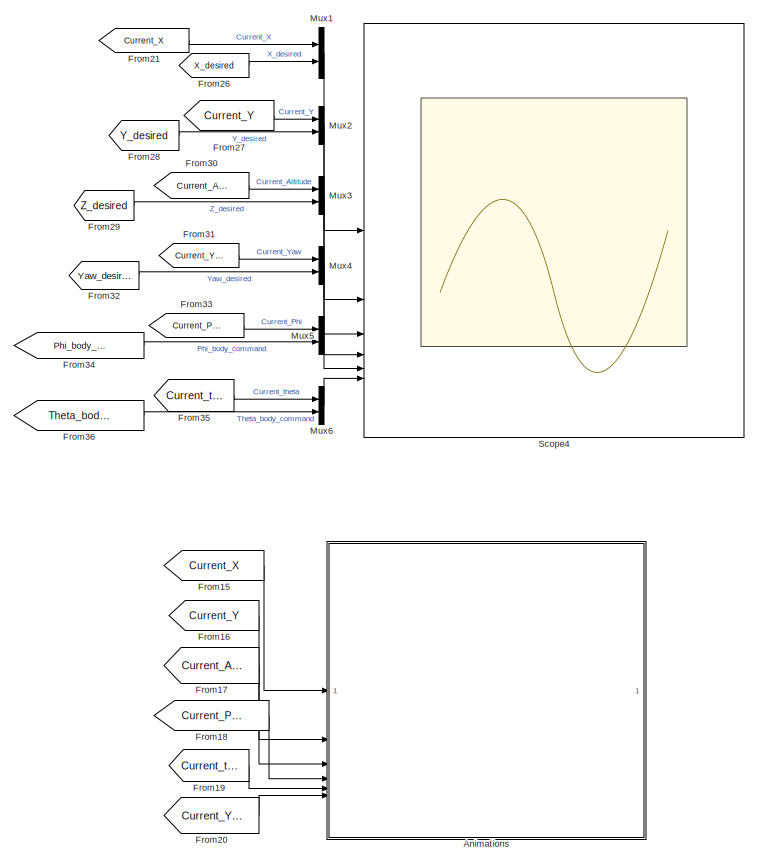
[diagram: root canvas - part 1/3, right side, full height]
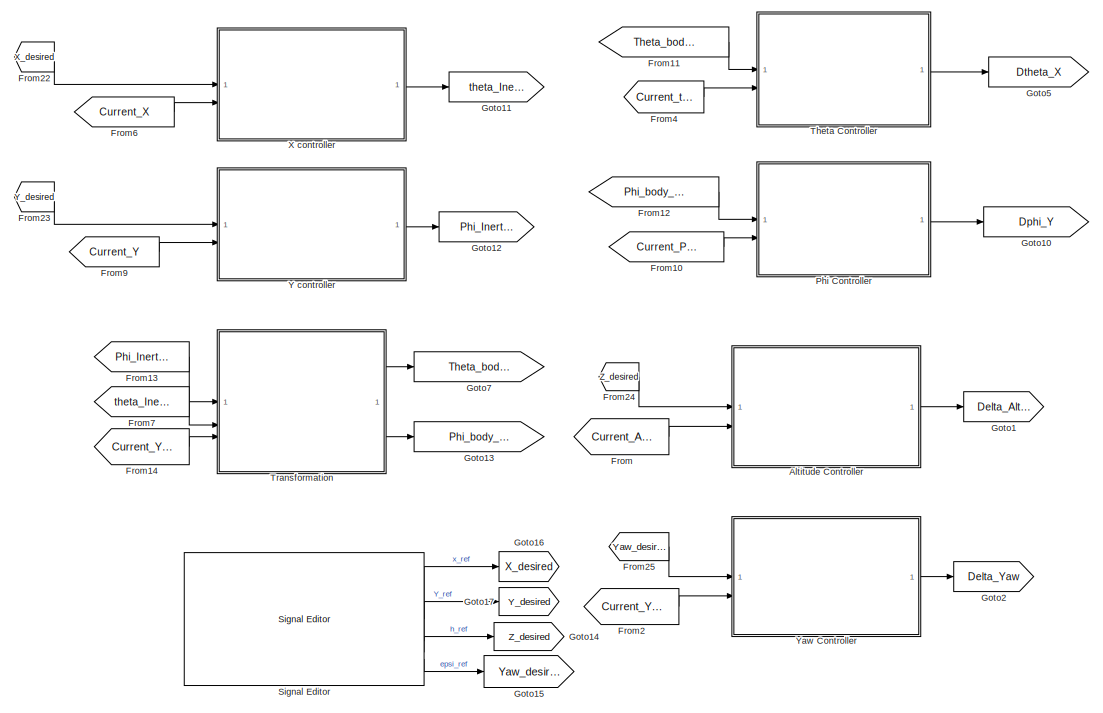
[diagram: root canvas - part 2/3, left side, full height]
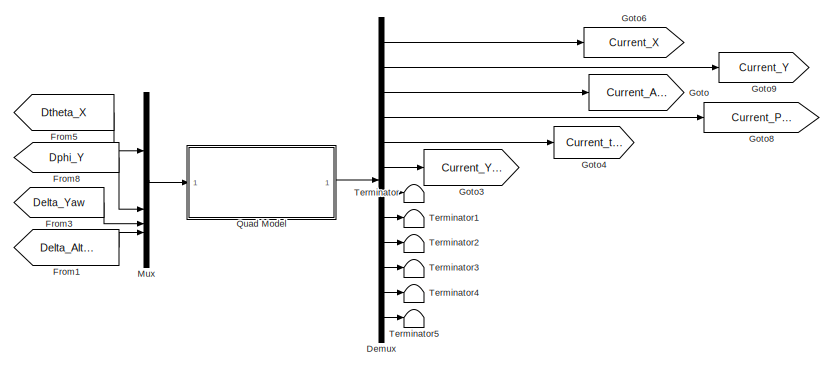
[diagram: root canvas - part 3/3, central region]
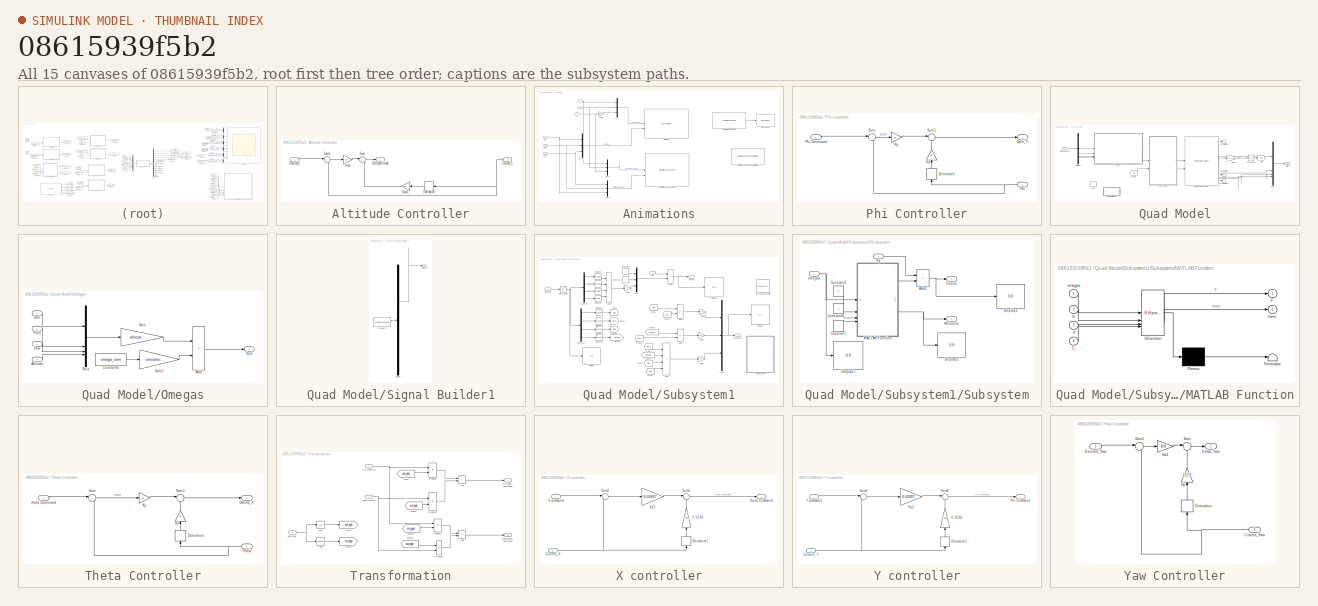
[diagram: thumbnail index - all 15 canvases of the model, root first then tree order]
MODEL slx_08615939f5b2
KIND model
CONFIG AbsTol = auto
CONFIG EnableMultiTasking = off
CONFIG FixedStep = auto
CONFIG MaxStep = auto
CONFIG MinStep = auto
CONFIG RelTol = 1e-3
CONFIG SampleTimeConstraint = Unconstrained
CONFIG SolverName = VariableStepAuto
CONFIG StartTime = 0.0
CONFIG StopTime = 50
BLOCK [SubSystem] Altitude Controller
BLOCK [Inport] Altitude Controller/Current_h
  Port = 2
BLOCK [Outport] Altitude Controller/Delta_Altitude
BLOCK [Derivative] Altitude Controller/Derivative
BLOCK [Inport] Altitude Controller/Desired_h
BLOCK [Gain] Altitude Controller/Gain1
  Gain = 89
BLOCK [Gain] Altitude Controller/Kd1
  Gain = 30
BLOCK [Sum] Altitude Controller/Sum
  Inputs = |++
BLOCK [Sum] Altitude Controller/Sum1
  Inputs = |-+
BLOCK [SubSystem] Animations
BLOCK [Gain] Animations/Gain1
  Gain = -1
BLOCK [Mux] Animations/Mux1
  DisplayOption = bar
  Inputs = 3
BLOCK [Mux] Animations/Mux2
  DisplayOption = bar
  Inputs = 3
BLOCK [Mux] Animations/Mux3
  DisplayOption = bar
  Inputs = 3
BLOCK [Mux] Animations/Mux9
  DisplayOption = bar
  Inputs = 3
BLOCK [Reference] Animations/Simulation  REF=aerolibanim/6DoF Animation
  SourceBlock = aerolibanim/6DoF Animation
  SourceType = 6DoF_Animation
BLOCK [Reference] Animations/Simulation 3D Camera  REF=sim3dcameralib/Simulation 3D Camera
  LibrarySourceBlock = uavsim3dlib/Simulation 3D Camera
  Priority = 1
  SourceBlock = sim3dcameralib/Simulation 3D Camera
  SourceType = Simulation 3D Camera
BLOCK [Reference] Animations/Simulation 3D Scene Configuration  REF=sim3dlib/Simulation 3D Scene Configuration
  LibrarySourceBlock = uavsim3dlib/Simulation 3D Scene Configuration
  Priority = 0
  SourceBlock = sim3dlib/Simulation 3D Scene Configuration
  SourceType = Simulation 3D Scene Configuration
BLOCK [Reference] Animations/Simulation 3D UAV Vehicle  REF=uavsim3dlib/Simulation 3D UAV Vehicle
  Priority = -1
  SourceBlock = uavsim3dlib/Simulation 3D UAV Vehicle
  SourceType = Simulation 3D UAV Vehicle
BLOCK [VideoViewer] Animations/Video Viewer
  FigPos = [803 436 418 304]
  ScopeSpecificationString = vipscopes.VideoViewerScopeCfg('CurrentConfiguration', extmgr.ConfigurationSet(extmgr.Configuration('Core','General UI',true),extmgr.Configuration('Core','Source UI',true),extmgr.Configuration('Sources','WiredSimulink',true),extmgr.Configuration('Visuals','Video',true),extmgr.Configuration('Tools','Image Navigation Tools',true),extmgr.Configuration('Tools','Image Tool',true),extmgr.Configuration('T...<+75ch>
BLOCK [Inport] Animations/X
BLOCK [Inport] Animations/Y
  Port = 2
BLOCK [Inport] Animations/Z+
  Port = 3
BLOCK [Inport] Animations/epsi
  Port = 6
BLOCK [Inport] Animations/phi
  Port = 4
BLOCK [Inport] Animations/theta
  Port = 5
BLOCK [Demux] Demux
  Outputs = 12
BLOCK [From] From
  GotoTag = Current_Altitude
BLOCK [From] From1
  GotoTag = Delta_Altitude
BLOCK [From] From10
  GotoTag = Current_Phi
BLOCK [From] From11
  GotoTag = Theta_body_command
BLOCK [From] From12
  GotoTag = Phi_body_command
BLOCK [From] From13
  GotoTag = Phi_Inertial
BLOCK [From] From14
  GotoTag = Current_Yaw
BLOCK [From] From15
  GotoTag = Current_X
BLOCK [From] From16
  GotoTag = Current_Y
BLOCK [From] From17
  GotoTag = Current_Altitude
BLOCK [From] From18
  GotoTag = Current_Phi
BLOCK [From] From19
  GotoTag = Current_theta
BLOCK [From] From2
  GotoTag = Current_Yaw
BLOCK [From] From20
  GotoTag = Current_Yaw
BLOCK [From] From21
  GotoTag = Current_X
BLOCK [From] From22
  GotoTag = X_desired
BLOCK [From] From23
  GotoTag = Y_desired
BLOCK [From] From24
  GotoTag = Z_desired
BLOCK [From] From25
  GotoTag = Yaw_desired
BLOCK [From] From26
  GotoTag = X_desired
BLOCK [From] From27
  GotoTag = Current_Y
BLOCK [From] From28
  GotoTag = Y_desired
BLOCK [From] From29
  GotoTag = Z_desired
BLOCK [From] From3
  GotoTag = Delta_Yaw
BLOCK [From] From30
  GotoTag = Current_Altitude
BLOCK [From] From31
  GotoTag = Current_Yaw
BLOCK [From] From32
  GotoTag = Yaw_desired
BLOCK [From] From33
  GotoTag = Current_Phi
BLOCK [From] From34
  GotoTag = Phi_body_command
BLOCK [From] From35
  GotoTag = Current_theta
BLOCK [From] From36
  GotoTag = Theta_body_command
BLOCK [From] From4
  GotoTag = Current_theta
BLOCK [From] From5
  GotoTag = Dtheta_X
BLOCK [From] From6
  GotoTag = Current_X
BLOCK [From] From7
  GotoTag = theta_Inertial
BLOCK [From] From8
  GotoTag = Dphi_Y
BLOCK [From] From9
  GotoTag = Current_Y
BLOCK [Goto] Goto
  GotoTag = Current_Altitude
BLOCK [Goto] Goto1
  GotoTag = Delta_Altitude
BLOCK [Goto] Goto10
  GotoTag = Dphi_Y
BLOCK [Goto] Goto11
  GotoTag = theta_Inertial
BLOCK [Goto] Goto12
  GotoTag = Phi_Inertial
BLOCK [Goto] Goto13
  GotoTag = Phi_body_command
BLOCK [Goto] Goto14
  GotoTag = Z_desired
BLOCK [Goto] Goto15
  GotoTag = Yaw_desired
BLOCK [Goto] Goto16
  GotoTag = X_desired
BLOCK [Goto] Goto17
  GotoTag = Y_desired
BLOCK [Goto] Goto2
  GotoTag = Delta_Yaw
BLOCK [Goto] Goto3
  GotoTag = Current_Yaw
BLOCK [Goto] Goto4
  GotoTag = Current_theta
BLOCK [Goto] Goto5
  GotoTag = Dtheta_X
BLOCK [Goto] Goto6
  GotoTag = Current_X
BLOCK [Goto] Goto7
  GotoTag = Theta_body_command
BLOCK [Goto] Goto8
  GotoTag = Current_Phi
BLOCK [Goto] Goto9
  GotoTag = Current_Y
BLOCK [Mux] Mux
  DisplayOption = bar
BLOCK [Mux] Mux1
  DisplayOption = bar
  Inputs = 2
BLOCK [Mux] Mux2
  DisplayOption = bar
  Inputs = 2
BLOCK [Mux] Mux3
  DisplayOption = bar
  Inputs = 2
BLOCK [Mux] Mux4
  DisplayOption = bar
  Inputs = 2
BLOCK [Mux] Mux5
  DisplayOption = bar
  Inputs = 2
BLOCK [Mux] Mux6
  DisplayOption = bar
  Inputs = 2
BLOCK [SubSystem] Phi Controller
BLOCK [Derivative] Phi Controller/Derivative
  NameLocation = left
BLOCK [Outport] Phi Controller/Dphi_Y
BLOCK [Gain] Phi Controller/Kd
  Gain = 15
  NameLocation = right
BLOCK [Gain] Phi Controller/Kp
  Gain = 25
BLOCK [Inport] Phi Controller/Phi
  Port = 2
BLOCK [Inport] Phi Controller/Phi Command
BLOCK [Sum] Phi Controller/Sum
  Inputs = |+-
BLOCK [Sum] Phi Controller/Sum1
  Inputs = |+-
BLOCK [SubSystem] Quad Model
BLOCK [Reference] Quad Model/6DOF (Euler Angles)  REF=aerolibobsolete/6DOF (Euler Angles)
  SourceBlock = aerolibobsolete/6DOF (Euler Angles)
  SourceType = 6DOF EoM (Body Axis)
BLOCK [Inport] Quad Model/Control_Input
BLOCK [Demux] Quad Model/Demux
BLOCK [From] Quad Model/From
  GotoTag = Fg
BLOCK [Gain] Quad Model/Gain2
  Gain = [0; 0;m*g]
  Multiplication = Matrix(u*K)
  NameLocation = top
BLOCK [Goto] Quad Model/Goto
  GotoTag = Fg
BLOCK [Mux] Quad Model/Mux1
  DisplayOption = bar
BLOCK [SubSystem] Quad Model/Omegas
BLOCK [Sum] Quad Model/Omegas/Add
  IconShape = rectangular
BLOCK [Inport] Quad Model/Omegas/Altitude 
  Port = 4
BLOCK [Constant] Quad Model/Omegas/Constant4
  Value = omega_nom
BLOCK [Gain] Quad Model/Omegas/Gain
  Gain = allocation_matrix
  Multiplication = Matrix(K*u)
BLOCK [Gain] Quad Model/Omegas/Gain1
  Gain = ones(motors_no,1)
BLOCK [Mux] Quad Model/Omegas/Mux
  DisplayOption = bar
BLOCK [Outport] Quad Model/Omegas/Out1
BLOCK [Inport] Quad Model/Omegas/Pitch 
  Port = 2
BLOCK [Inport] Quad Model/Omegas/Roll 
BLOCK [Inport] Quad Model/Omegas/Yaw 
  Port = 3
BLOCK [SubSystem] Quad Model/Signal Builder1
  ClipboardFcn = sigbuilder_block('clipboard');
  CloseFcn = sigbuilder_block('close');
  Commented = on
  ContinueFcn = sigbuilder_block('continue');
  CopyFcn = sigbuilder_block('copy');
  DeleteFcn = sigbuilder_block('delete');
  LoadFcn = sigbuilder_block('load');
  MaskHideContents = on
  ModelCloseFcn = sigbuilder_block('modelClose');
  NameChangeFcn = sigbuilder_block('namechange');
  OpenFcn = sigbuilder_block('open',[394.2 60 550.8 400.2 ]);
  PauseFcn = sigbuilder_block('pause');
  PreSaveFcn = sigbuilder_block('preSave');
  StartFcn = sigbuilder_block('start');
  StopFcn = sigbuilder_block('stop');
  Tag = STV Subsys
BLOCK [Demux] Quad Model/Signal Builder1/Demux
  DisplayOption = none
  Outputs = 1
  Tag = STV Demux
BLOCK [FromWorkspace] Quad Model/Signal Builder1/FromWs
  Tag = STV FromWs
  VariableName = tuvar
BLOCK [Outport] Quad Model/Signal Builder1/Signal 1
  Tag = STV Outport
BLOCK [Outport] Quad Model/States
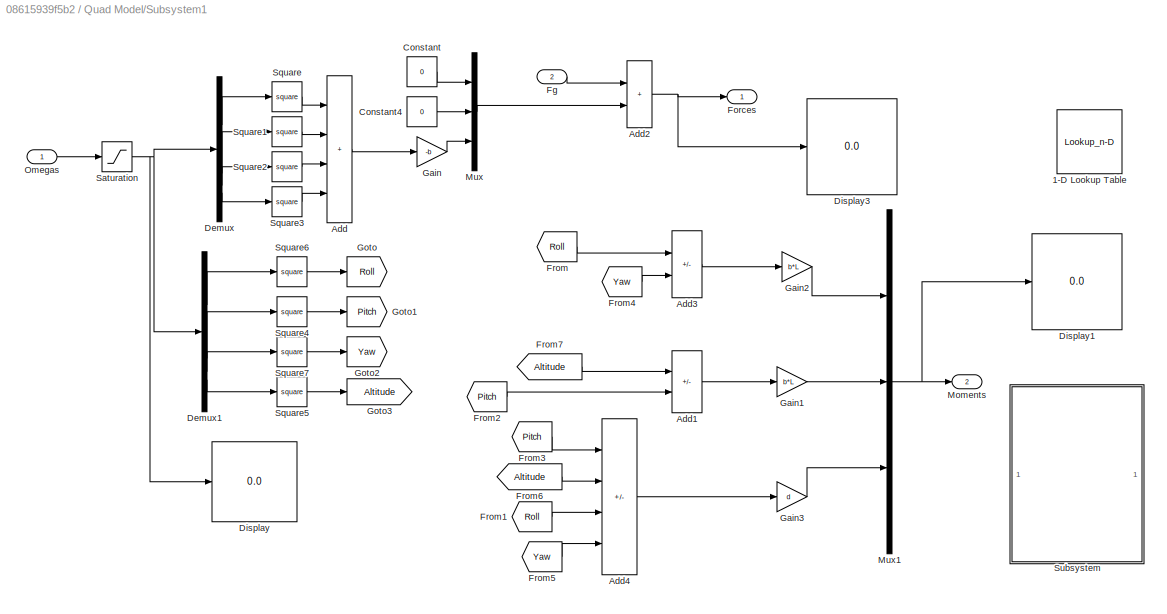
BLOCK [SubSystem] Quad Model/Subsystem1
BLOCK [Lookup_n-D] Quad Model/Subsystem1/1-D Lookup Table
  BreakpointsForDimension1 = [0 omega_nom sqrt(2)*omega_nom]
  Commented = on
  InputPortMap = u0
  InternalRulePriority = Speed
  NumberOfTableDimensions = 1
  RndMeth = Simplest
  Table = [-1 0 1]
BLOCK [Sum] Quad Model/Subsystem1/Add
  IconShape = rectangular
  Inputs = ++++
BLOCK [Sum] Quad Model/Subsystem1/Add1
  IconShape = rectangular
  Inputs = +-
BLOCK [Sum] Quad Model/Subsystem1/Add2
  IconShape = rectangular
BLOCK [Sum] Quad Model/Subsystem1/Add3
  IconShape = rectangular
  Inputs = +-
BLOCK [Sum] Quad Model/Subsystem1/Add4
  IconShape = rectangular
  Inputs = --++
BLOCK [Constant] Quad Model/Subsystem1/Constant
  Value = 0
BLOCK [Constant] Quad Model/Subsystem1/Constant4
  Value = 0
BLOCK [Demux] Quad Model/Subsystem1/Demux
BLOCK [Demux] Quad Model/Subsystem1/Demux1
BLOCK [Display] Quad Model/Subsystem1/Display
  Decimation = 1
BLOCK [Display] Quad Model/Subsystem1/Display1
  Decimation = 1
BLOCK [Display] Quad Model/Subsystem1/Display3
  Decimation = 1
BLOCK [Inport] Quad Model/Subsystem1/Fg
  Port = 2
BLOCK [Outport] Quad Model/Subsystem1/Forces
BLOCK [From] Quad Model/Subsystem1/From
  GotoTag = Roll
BLOCK [From] Quad Model/Subsystem1/From1
  GotoTag = Roll
BLOCK [From] Quad Model/Subsystem1/From2
  GotoTag = Pitch
BLOCK [From] Quad Model/Subsystem1/From3
  GotoTag = Pitch
BLOCK [From] Quad Model/Subsystem1/From4
  GotoTag = Yaw
BLOCK [From] Quad Model/Subsystem1/From5
  GotoTag = Yaw
BLOCK [From] Quad Model/Subsystem1/From6
  GotoTag = Altitude
BLOCK [From] Quad Model/Subsystem1/From7
  GotoTag = Altitude
BLOCK [Gain] Quad Model/Subsystem1/Gain
  Gain = -b
  Multiplication = Matrix(K*u)
BLOCK [Gain] Quad Model/Subsystem1/Gain1
  Gain = b*L
BLOCK [Gain] Quad Model/Subsystem1/Gain2
  Gain = b*L
BLOCK [Gain] Quad Model/Subsystem1/Gain3
  Gain = d
BLOCK [Goto] Quad Model/Subsystem1/Goto
  GotoTag = Roll
BLOCK [Goto] Quad Model/Subsystem1/Goto1
  GotoTag = Pitch
BLOCK [Goto] Quad Model/Subsystem1/Goto2
  GotoTag = Yaw
BLOCK [Goto] Quad Model/Subsystem1/Goto3
  GotoTag = Altitude
BLOCK [Outport] Quad Model/Subsystem1/Moments
  Port = 2
BLOCK [Mux] Quad Model/Subsystem1/Mux
  DisplayOption = bar
  Inputs = 3
BLOCK [Mux] Quad Model/Subsystem1/Mux1
  DisplayOption = bar
  Inputs = 3
BLOCK [Inport] Quad Model/Subsystem1/Omegas
BLOCK [Saturate] Quad Model/Subsystem1/Saturation
  UpperLimit = omega_max
BLOCK [Math] Quad Model/Subsystem1/Square
  Operator = square
BLOCK [Math] Quad Model/Subsystem1/Square1
  Operator = square
BLOCK [Math] Quad Model/Subsystem1/Square2
  Operator = square
BLOCK [Math] Quad Model/Subsystem1/Square3
  Operator = square
BLOCK [Math] Quad Model/Subsystem1/Square4
  Operator = square
BLOCK [Math] Quad Model/Subsystem1/Square5
  Operator = square
BLOCK [Math] Quad Model/Subsystem1/Square6
  Operator = square
BLOCK [Math] Quad Model/Subsystem1/Square7
  Operator = square
BLOCK [SubSystem] Quad Model/Subsystem1/Subsystem
  Commented = on
BLOCK [Sum] Quad Model/Subsystem1/Subsystem/Add1
  IconShape = rectangular
BLOCK [Constant] Quad Model/Subsystem1/Subsystem/Constant5
  Value = b
BLOCK [Constant] Quad Model/Subsystem1/Subsystem/Constant6
  Value = d
BLOCK [Constant] Quad Model/Subsystem1/Subsystem/Constant7
  Value = L
BLOCK [Display] Quad Model/Subsystem1/Subsystem/Display1
  Decimation = 1
BLOCK [Display] Quad Model/Subsystem1/Subsystem/Display2
  Decimation = 1
BLOCK [Display] Quad Model/Subsystem1/Subsystem/Display3
  Decimation = 1
BLOCK [Inport] Quad Model/Subsystem1/Subsystem/Fg
  Port = 2
BLOCK [Outport] Quad Model/Subsystem1/Subsystem/Forces
BLOCK [SubSystem] Quad Model/Subsystem1/Subsystem/MATLAB Function
  ErrorFcn = Stateflow.Translate.translate
  PermitHierarchicalResolution = ExplicitOnly
  SFBlockType = MATLAB Function
  TreatAsAtomicUnit = on
BLOCK [Demux] Quad Model/Subsystem1/Subsystem/MATLAB Function/ Demux 
  Outputs = 1
BLOCK [S-Function] Quad Model/Subsystem1/Subsystem/MATLAB Function/ SFunction 
  EnableBusSupport = off
  FunctionName = sf_sfun
  PortCounts = [4 3]
  SFcnIsStateOwnerBlock = off
  SFunctionDeploymentMode = off
  Tag = Stateflow S-Function 2
BLOCK [Terminator] Quad Model/Subsystem1/Subsystem/MATLAB Function/ Terminator 
BLOCK [Outport] Quad Model/Subsystem1/Subsystem/MATLAB Function/F
BLOCK [Inport] Quad Model/Subsystem1/Subsystem/MATLAB Function/L
  Port = 4
BLOCK [Inport] Quad Model/Subsystem1/Subsystem/MATLAB Function/b
  Port = 2
BLOCK [Inport] Quad Model/Subsystem1/Subsystem/MATLAB Function/d
  Port = 3
BLOCK [Outport] Quad Model/Subsystem1/Subsystem/MATLAB Function/mom
  Port = 2
BLOCK [Inport] Quad Model/Subsystem1/Subsystem/MATLAB Function/omegas
BLOCK [Outport] Quad Model/Subsystem1/Subsystem/Moments
  Port = 2
BLOCK [Inport] Quad Model/Subsystem1/Subsystem/omegas
BLOCK [Terminator] Quad Model/Terminator
BLOCK [Terminator] Quad Model/Terminator1
BLOCK [Terminator] Quad Model/Terminator2
BLOCK [Math] Quad Model/Transpose
  Operator = transpose
BLOCK [Constant] Quad Model/Yaw
  Commented = on
  NameLocation = left
  Value = 0
BLOCK [Scope] Scope4
  ActiveDisplayYMaximum = 5.625
  ActiveDisplayYMinimum = -0.62499999999999989
  DataLoggingVariableName = ScopeData4
  Floating = off
  GraphicalSettings = {"Style":{"BackgroundColor":[0.12941176470588237,0.12941176470588237,0.12941176470588237],"AxesColor":[0.07058823529411765,0.07058823529411765,0.07058823529411765],"LabelsColor":[0.8509803921568627,0.8509803921568627,0.8509803921568627],"PreserveColors":false,"Visible":[true,true,true,true,true,true,true,true,true,true,true,true],"LineStyle":["-","-","-","-","-","-","-","-","-","-","-","-"],"LineW...<+4903ch>
  LayoutDimensionsString = [2,3]
  MultipleDisplayCache = [{"MaxYLimMag":5.625,"MaxYLimReal":5.625,"MinYLimMag":0,"MinYLimReal":-0.62499999999999989,"PlotAsMagnitudePhase":false,"ShowGrid":true,"ShowLegend":true,"Title":"%<SignalLabel>","YLabel":""},{"MaxYLimMag":5.625,"MaxYLimReal":5.625,"MinYLimMag":0,"MinYLimReal":-0.62499999999999989,"PlotAsMagnitudePhase":false,"ShowGrid":true,"ShowLegend":true,"Title":"%<SignalLabel>","YLabel":""},{"MaxYLimMag":8.0...<+854ch>
  NumInputPorts = 6
  ScopeFrameLocation = window
  ShowLegend = on
  WasSavedAsWebScope = on
  WindowPosition = [0.000000,36.000000,1366.000000,697.000000,]
BLOCK [Reference] Signal Editor  REF=SignalEditorBlockLib/Signal Editor
  LibrarySourceBlock = simulink/Sources/Signal Editor
  SourceBlock = SignalEditorBlockLib/Signal Editor
  SourceType = SignalEditor
  UserDataPersistent = on
BLOCK [Terminator] Terminator
BLOCK [Terminator] Terminator1
BLOCK [Terminator] Terminator2
BLOCK [Terminator] Terminator3
BLOCK [Terminator] Terminator4
BLOCK [Terminator] Terminator5
BLOCK [SubSystem] Theta Controller
BLOCK [Derivative] Theta Controller/Derivative
  NameLocation = left
BLOCK [Outport] Theta Controller/Dtheta_X
BLOCK [Gain] Theta Controller/Kd
  Gain = 15
  NameLocation = right
BLOCK [Gain] Theta Controller/Kp
  Gain = 25
BLOCK [Sum] Theta Controller/Sum
  Inputs = |+-
BLOCK [Sum] Theta Controller/Sum1
  Inputs = |+-
BLOCK [Inport] Theta Controller/Theta
  Port = 2
BLOCK [Inport] Theta Controller/theta Command
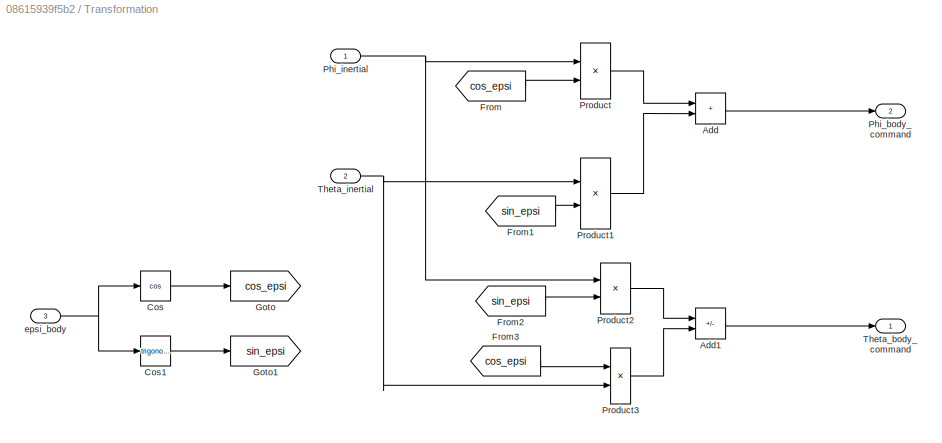
BLOCK [SubSystem] Transformation
BLOCK [Sum] Transformation/Add
  IconShape = rectangular
BLOCK [Sum] Transformation/Add1
  IconShape = rectangular
  Inputs = -+
BLOCK [Trigonometry] Transformation/Cos
  Operator = cos
BLOCK [Trigonometry] Transformation/Cos1
BLOCK [From] Transformation/From
  GotoTag = cos_epsi
BLOCK [From] Transformation/From1
  GotoTag = sin_epsi
BLOCK [From] Transformation/From2
  GotoTag = sin_epsi
BLOCK [From] Transformation/From3
  GotoTag = cos_epsi
BLOCK [Goto] Transformation/Goto
  GotoTag = cos_epsi
BLOCK [Goto] Transformation/Goto1
  GotoTag = sin_epsi
BLOCK [Outport] Transformation/Phi_body_command
  Port = 2
BLOCK [Inport] Transformation/Phi_inertial
BLOCK [Product] Transformation/Product
BLOCK [Product] Transformation/Product1
BLOCK [Product] Transformation/Product2
BLOCK [Product] Transformation/Product3
BLOCK [Outport] Transformation/Theta_body_command
BLOCK [Inport] Transformation/Theta_inertial
  Port = 2
BLOCK [Inport] Transformation/epsi_body
  Port = 3
BLOCK [SubSystem] X controller
BLOCK [Gain] X controller/0.1038
  Gain = 0.1038
  NameLocation = right
BLOCK [Inport] X controller/Current_X
  Port = 2
BLOCK [Derivative] X controller/Derivative1
  NameLocation = left
BLOCK [Gain] X controller/Kp2
  Gain = 0.02667
  NameLocation = top
BLOCK [Sum] X controller/Sum2
  Inputs = |++
BLOCK [Sum] X controller/Sum3
  Inputs = |-+
BLOCK [Inport] X controller/X command
BLOCK [Outport] X controller/theta Command
BLOCK [SubSystem] Y controller
BLOCK [Gain] Y controller/0.1038
  Gain = 0.1038
  NameLocation = right
BLOCK [Inport] Y controller/Current_Y
  Port = 2
BLOCK [Derivative] Y controller/Derivative1
  NameLocation = left
BLOCK [Gain] Y controller/Kp2
  Gain = 0.02667
  NameLocation = top
BLOCK [Outport] Y controller/Phi Command
BLOCK [Sum] Y controller/Sum2
  Inputs = |+-
BLOCK [Sum] Y controller/Sum3
  Inputs = |+-
BLOCK [Inport] Y controller/Y command
BLOCK [SubSystem] Yaw Controller
BLOCK [Inport] Yaw Controller/Current_Yaw
  Port = 2
BLOCK [Outport] Yaw Controller/Delta_Yaw
BLOCK [Derivative] Yaw Controller/Derivative
  NameLocation = left
BLOCK [Inport] Yaw Controller/Desired_Yaw
BLOCK [Gain] Yaw Controller/Kd1
  Gain = 304
BLOCK [Gain] Yaw Controller/Kp
  Gain = 322.8
  NameLocation = left
BLOCK [Sum] Yaw Controller/Sum
  Inputs = |+-
BLOCK [Sum] Yaw Controller/Sum1
  Inputs = |+-
NET Altitude Controller/Current_h:1 -> Altitude Controller/Derivative:1, Altitude Controller/Sum1:2
LINE Altitude Controller/Derivative:1 -> Altitude Controller/Gain1:1
LINE Altitude Controller/Desired_h:1 -> Altitude Controller/Sum1:1
LINE Altitude Controller/Gain1:1 -> Altitude Controller/Sum:2
LINE Altitude Controller/Kd1:1 -> Altitude Controller/Sum:1
LINE Altitude Controller/Sum1:1 -> Altitude Controller/Kd1:1
LINE Altitude Controller/Sum:1 -> Altitude Controller/Delta_Altitude:1
LINE Altitude Controller:1 -> Goto1:1
LINE Animations/Gain1:1 -> Animations/Mux1:3
LINE Animations/Mux1:1 -> Animations/Simulation:1
LINE Animations/Mux2:1 -> Animations/Simulation:2
LINE Animations/Mux3:1 -> Animations/Simulation 3D UAV Vehicle:2
LINE Animations/Mux9:1 -> Animations/Simulation 3D UAV Vehicle:1
LINE Animations/Simulation 3D Camera:1 -> Animations/Video Viewer:1
NET Animations/X:1 -> Animations/Mux1:1, Animations/Mux9:1
NET Animations/Y:1 -> Animations/Mux1:2, Animations/Mux9:2
NET Animations/Z+:1 -> Animations/Gain1:1, Animations/Mux9:3
NET Animations/epsi:1 -> Animations/Mux2:3, Animations/Mux3:1
NET Animations/phi:1 -> Animations/Mux2:1, Animations/Mux3:3
NET Animations/theta:1 -> Animations/Mux2:2, Animations/Mux3:2
LINE Demux:1 -> Goto6:1
LINE Demux:10 -> Terminator3:1
LINE Demux:11 -> Terminator4:1
LINE Demux:12 -> Terminator5:1
LINE Demux:2 -> Goto9:1
LINE Demux:3 -> Goto:1
LINE Demux:4 -> Goto8:1
LINE Demux:5 -> Goto4:1
LINE Demux:6 -> Goto3:1
LINE Demux:7 -> Terminator:1
LINE Demux:8 -> Terminator1:1
LINE Demux:9 -> Terminator2:1
LINE From10:1 -> Phi Controller:2
LINE From11:1 -> Theta Controller:1
LINE From12:1 -> Phi Controller:1
LINE From13:1 -> Transformation:1
LINE From14:1 -> Transformation:3
LINE From15:1 -> Animations:1
LINE From16:1 -> Animations:2
LINE From17:1 -> Animations:3
LINE From18:1 -> Animations:4
LINE From19:1 -> Animations:5
LINE From1:1 -> Mux:4
LINE From20:1 -> Animations:6
LINE From21:1 -> Mux1:1
LINE From22:1 -> X controller:1
LINE From23:1 -> Y controller:1
LINE From24:1 -> Altitude Controller:1
LINE From25:1 -> Yaw Controller:1
LINE From26:1 -> Mux1:2
LINE From27:1 -> Mux2:1
LINE From28:1 -> Mux2:2
LINE From29:1 -> Mux3:2
LINE From2:1 -> Yaw Controller:2
LINE From30:1 -> Mux3:1
LINE From31:1 -> Mux4:1
LINE From32:1 -> Mux4:2
LINE From33:1 -> Mux5:1
LINE From34:1 -> Mux5:2
LINE From35:1 -> Mux6:1
LINE From36:1 -> Mux6:2
LINE From3:1 -> Mux:3
LINE From4:1 -> Theta Controller:2
LINE From5:1 -> Mux:1
LINE From6:1 -> X controller:2
LINE From7:1 -> Transformation:2
LINE From8:1 -> Mux:2
LINE From9:1 -> Y controller:2
LINE From:1 -> Altitude Controller:2
LINE Mux1:1 -> Scope4:1
LINE Mux2:1 -> Scope4:2
LINE Mux3:1 -> Scope4:3
LINE Mux4:1 -> Scope4:4
LINE Mux5:1 -> Scope4:5
LINE Mux6:1 -> Scope4:6
LINE Mux:1 -> Quad Model:1
LINE Phi Controller/Derivative:1 -> Phi Controller/Kd:1
LINE Phi Controller/Kd:1 -> Phi Controller/Sum1:2
LINE Phi Controller/Kp:1 -> Phi Controller/Sum1:1
LINE Phi Controller/Phi Command:1 -> Phi Controller/Sum:1
NET Phi Controller/Phi:1 -> Phi Controller/Derivative:1, Phi Controller/Sum:2
LINE Phi Controller/Sum1:1 -> Phi Controller/Dphi_Y:1
LINE Phi Controller/Sum:1 -> Phi Controller/Kp:1
LINE Phi Controller:1 -> Goto10:1
LINE Quad Model/6DOF (Euler Angles):1 -> Quad Model/Terminator:1
LINE Quad Model/6DOF (Euler Angles):2 -> Quad Model/Mux1:1
LINE Quad Model/6DOF (Euler Angles):3 -> Quad Model/Mux1:2
LINE Quad Model/6DOF (Euler Angles):4 -> Quad Model/Gain2:1
LINE Quad Model/6DOF (Euler Angles):5 -> Quad Model/Mux1:3
LINE Quad Model/6DOF (Euler Angles):6 -> Quad Model/Mux1:4
LINE Quad Model/6DOF (Euler Angles):7 -> Quad Model/Terminator1:1
LINE Quad Model/6DOF (Euler Angles):8 -> Quad Model/Terminator2:1
LINE Quad Model/Control_Input:1 -> Quad Model/Demux:1
LINE Quad Model/Demux:1 -> Quad Model/Omegas:1
LINE Quad Model/Demux:2 -> Quad Model/Omegas:2
LINE Quad Model/Demux:3 -> Quad Model/Omegas:3
LINE Quad Model/Demux:4 -> Quad Model/Omegas:4
LINE Quad Model/From:1 -> Quad Model/Subsystem1:2
LINE Quad Model/Gain2:1 -> Quad Model/Transpose:1
LINE Quad Model/Mux1:1 -> Quad Model/States:1
LINE Quad Model/Omegas/Add:1 -> Quad Model/Omegas/Out1:1
LINE Quad Model/Omegas/Altitude :1 -> Quad Model/Omegas/Mux:4
LINE Quad Model/Omegas/Constant4:1 -> Quad Model/Omegas/Gain1:1
LINE Quad Model/Omegas/Gain1:1 -> Quad Model/Omegas/Add:2
LINE Quad Model/Omegas/Gain:1 -> Quad Model/Omegas/Add:1
LINE Quad Model/Omegas/Mux:1 -> Quad Model/Omegas/Gain:1
LINE Quad Model/Omegas/Pitch :1 -> Quad Model/Omegas/Mux:2
LINE Quad Model/Omegas/Roll :1 -> Quad Model/Omegas/Mux:1
LINE Quad Model/Omegas/Yaw :1 -> Quad Model/Omegas/Mux:3
LINE Quad Model/Omegas:1 -> Quad Model/Subsystem1:1
LINE Quad Model/Subsystem1/Add1:1 -> Quad Model/Subsystem1/Gain1:1
NET Quad Model/Subsystem1/Add2:1 -> Quad Model/Subsystem1/Display3:1, Quad Model/Subsystem1/Forces:1
LINE Quad Model/Subsystem1/Add3:1 -> Quad Model/Subsystem1/Gain2:1
LINE Quad Model/Subsystem1/Add4:1 -> Quad Model/Subsystem1/Gain3:1
LINE Quad Model/Subsystem1/Add:1 -> Quad Model/Subsystem1/Gain:1
LINE Quad Model/Subsystem1/Constant4:1 -> Quad Model/Subsystem1/Mux:2
LINE Quad Model/Subsystem1/Constant:1 -> Quad Model/Subsystem1/Mux:1
LINE Quad Model/Subsystem1/Demux1:1 -> Quad Model/Subsystem1/Square6:1
LINE Quad Model/Subsystem1/Demux1:2 -> Quad Model/Subsystem1/Square4:1
LINE Quad Model/Subsystem1/Demux1:3 -> Quad Model/Subsystem1/Square7:1
LINE Quad Model/Subsystem1/Demux1:4 -> Quad Model/Subsystem1/Square5:1
LINE Quad Model/Subsystem1/Demux:1 -> Quad Model/Subsystem1/Square:1
LINE Quad Model/Subsystem1/Demux:2 -> Quad Model/Subsystem1/Square1:1
LINE Quad Model/Subsystem1/Demux:3 -> Quad Model/Subsystem1/Square2:1
LINE Quad Model/Subsystem1/Demux:4 -> Quad Model/Subsystem1/Square3:1
LINE Quad Model/Subsystem1/Fg:1 -> Quad Model/Subsystem1/Add2:1
LINE Quad Model/Subsystem1/From1:1 -> Quad Model/Subsystem1/Add4:3
LINE Quad Model/Subsystem1/From2:1 -> Quad Model/Subsystem1/Add1:2
LINE Quad Model/Subsystem1/From3:1 -> Quad Model/Subsystem1/Add4:1
LINE Quad Model/Subsystem1/From4:1 -> Quad Model/Subsystem1/Add3:2
LINE Quad Model/Subsystem1/From5:1 -> Quad Model/Subsystem1/Add4:4
LINE Quad Model/Subsystem1/From6:1 -> Quad Model/Subsystem1/Add4:2
LINE Quad Model/Subsystem1/From7:1 -> Quad Model/Subsystem1/Add1:1
LINE Quad Model/Subsystem1/From:1 -> Quad Model/Subsystem1/Add3:1
LINE Quad Model/Subsystem1/Gain1:1 -> Quad Model/Subsystem1/Mux1:2
LINE Quad Model/Subsystem1/Gain2:1 -> Quad Model/Subsystem1/Mux1:1
LINE Quad Model/Subsystem1/Gain3:1 -> Quad Model/Subsystem1/Mux1:3
LINE Quad Model/Subsystem1/Gain:1 -> Quad Model/Subsystem1/Mux:3
NET Quad Model/Subsystem1/Mux1:1 -> Quad Model/Subsystem1/Display1:1, Quad Model/Subsystem1/Moments:1
LINE Quad Model/Subsystem1/Mux:1 -> Quad Model/Subsystem1/Add2:2
LINE Quad Model/Subsystem1/Omegas:1 -> Quad Model/Subsystem1/Saturation:1
NET Quad Model/Subsystem1/Saturation:1 -> Quad Model/Subsystem1/Demux1:1, Quad Model/Subsystem1/Demux:1, Quad Model/Subsystem1/Display:1
LINE Quad Model/Subsystem1/Square1:1 -> Quad Model/Subsystem1/Add:2
LINE Quad Model/Subsystem1/Square2:1 -> Quad Model/Subsystem1/Add:3
LINE Quad Model/Subsystem1/Square3:1 -> Quad Model/Subsystem1/Add:4
LINE Quad Model/Subsystem1/Square4:1 -> Quad Model/Subsystem1/Goto1:1
LINE Quad Model/Subsystem1/Square5:1 -> Quad Model/Subsystem1/Goto3:1
LINE Quad Model/Subsystem1/Square6:1 -> Quad Model/Subsystem1/Goto:1
LINE Quad Model/Subsystem1/Square7:1 -> Quad Model/Subsystem1/Goto2:1
LINE Quad Model/Subsystem1/Square:1 -> Quad Model/Subsystem1/Add:1
NET Quad Model/Subsystem1/Subsystem/Add1:1 -> Quad Model/Subsystem1/Subsystem/Display2:1, Quad Model/Subsystem1/Subsystem/Forces:1
LINE Quad Model/Subsystem1/Subsystem/Constant5:1 -> Quad Model/Subsystem1/Subsystem/MATLAB Function:2
LINE Quad Model/Subsystem1/Subsystem/Constant6:1 -> Quad Model/Subsystem1/Subsystem/MATLAB Function:3
LINE Quad Model/Subsystem1/Subsystem/Constant7:1 -> Quad Model/Subsystem1/Subsystem/MATLAB Function:4
LINE Quad Model/Subsystem1/Subsystem/Fg:1 -> Quad Model/Subsystem1/Subsystem/Add1:1
LINE Quad Model/Subsystem1/Subsystem/MATLAB Function:1 -> Quad Model/Subsystem1/Subsystem/Add1:2
NET Quad Model/Subsystem1/Subsystem/MATLAB Function:2 -> Quad Model/Subsystem1/Subsystem/Display3:1, Quad Model/Subsystem1/Subsystem/Moments:1
NET Quad Model/Subsystem1/Subsystem/omegas:1 -> Quad Model/Subsystem1/Subsystem/Display1:1, Quad Model/Subsystem1/Subsystem/MATLAB Function:1
LINE Quad Model/Subsystem1:1 -> Quad Model/6DOF (Euler Angles):1
LINE Quad Model/Subsystem1:2 -> Quad Model/6DOF (Euler Angles):2
LINE Quad Model/Transpose:1 -> Quad Model/Goto:1
LINE Quad Model:1 -> Demux:1
LINE Signal Editor:1 -> Goto16:1
LINE Signal Editor:2 -> Goto17:1
LINE Signal Editor:3 -> Goto14:1
LINE Signal Editor:4 -> Goto15:1
LINE Theta Controller/Derivative:1 -> Theta Controller/Kd:1
LINE Theta Controller/Kd:1 -> Theta Controller/Sum1:2
LINE Theta Controller/Kp:1 -> Theta Controller/Sum1:1
LINE Theta Controller/Sum1:1 -> Theta Controller/Dtheta_X:1
LINE Theta Controller/Sum:1 -> Theta Controller/Kp:1
NET Theta Controller/Theta:1 -> Theta Controller/Derivative:1, Theta Controller/Sum:2
LINE Theta Controller/theta Command:1 -> Theta Controller/Sum:1
LINE Theta Controller:1 -> Goto5:1
LINE Transformation/Add1:1 -> Transformation/Theta_body_command:1
LINE Transformation/Add:1 -> Transformation/Phi_body_command:1
LINE Transformation/Cos1:1 -> Transformation/Goto1:1
LINE Transformation/Cos:1 -> Transformation/Goto:1
LINE Transformation/From1:1 -> Transformation/Product1:2
LINE Transformation/From2:1 -> Transformation/Product2:2
LINE Transformation/From3:1 -> Transformation/Product3:1
LINE Transformation/From:1 -> Transformation/Product:2
NET Transformation/Phi_inertial:1 -> Transformation/Product2:1, Transformation/Product:1
LINE Transformation/Product1:1 -> Transformation/Add:2
LINE Transformation/Product2:1 -> Transformation/Add1:1
LINE Transformation/Product3:1 -> Transformation/Add1:2
LINE Transformation/Product:1 -> Transformation/Add:1
NET Transformation/Theta_inertial:1 -> Transformation/Product1:1, Transformation/Product3:2
NET Transformation/epsi_body:1 -> Transformation/Cos1:1, Transformation/Cos:1
LINE Transformation:1 -> Goto7:1
LINE Transformation:2 -> Goto13:1
LINE X controller/0.1038:1 -> X controller/Sum2:2
NET X controller/Current_X:1 -> X controller/Derivative1:1, X controller/Sum3:2
LINE X controller/Derivative1:1 -> X controller/0.1038:1
LINE X controller/Kp2:1 -> X controller/Sum2:1
LINE X controller/Sum2:1 -> X controller/theta Command:1
LINE X controller/Sum3:1 -> X controller/Kp2:1
LINE X controller/X command:1 -> X controller/Sum3:1
LINE X controller:1 -> Goto11:1
LINE Y controller/0.1038:1 -> Y controller/Sum2:2
NET Y controller/Current_Y:1 -> Y controller/Derivative1:1, Y controller/Sum3:2
LINE Y controller/Derivative1:1 -> Y controller/0.1038:1
LINE Y controller/Kp2:1 -> Y controller/Sum2:1
LINE Y controller/Sum2:1 -> Y controller/Phi Command:1
LINE Y controller/Sum3:1 -> Y controller/Kp2:1
LINE Y controller/Y command:1 -> Y controller/Sum3:1
LINE Y controller:1 -> Goto12:1
NET Yaw Controller/Current_Yaw:1 -> Yaw Controller/Derivative:1, Yaw Controller/Sum1:2
LINE Yaw Controller/Derivative:1 -> Yaw Controller/Kp:1
LINE Yaw Controller/Desired_Yaw:1 -> Yaw Controller/Sum1:1
LINE Yaw Controller/Kd1:1 -> Yaw Controller/Sum:1
LINE Yaw Controller/Kp:1 -> Yaw Controller/Sum:2
LINE Yaw Controller/Sum1:1 -> Yaw Controller/Kd1:1
LINE Yaw Controller/Sum:1 -> Yaw Controller/Delta_Yaw:1
LINE Yaw Controller:1 -> Goto2:1
note: NET lines group one-source signal fan-out (src -> all destinations, sorted); 1:1 wires keep LINE
CHART Quad Model/Subsystem1/Subsystem/MATLAB Function states=1 transitions=1
  STATE_LABEL 'eML_blk_kernel()'
  STATE_LABEL 'SCRIPT:\nfunction [F,mom] = fcn(omegas,b,d,L)\nw1= omegas(1);\nw2= omegas(2);\nw3= omegas(3);\nw4= omegas(4);\n\n%deltas (roll,pitch,yaw,thrust)\nF = [0 0 -b*(w1^2 + w2^2 +w3^2 + w4^2)];\nmom = [b*L*(w4^2-w2^2)...\n    b*L*(w1^2-w3^2)...\n    d*(-w2^2-w4^2+w1^2+w3^2)];\n'
CHART  states=0 transitions=0
